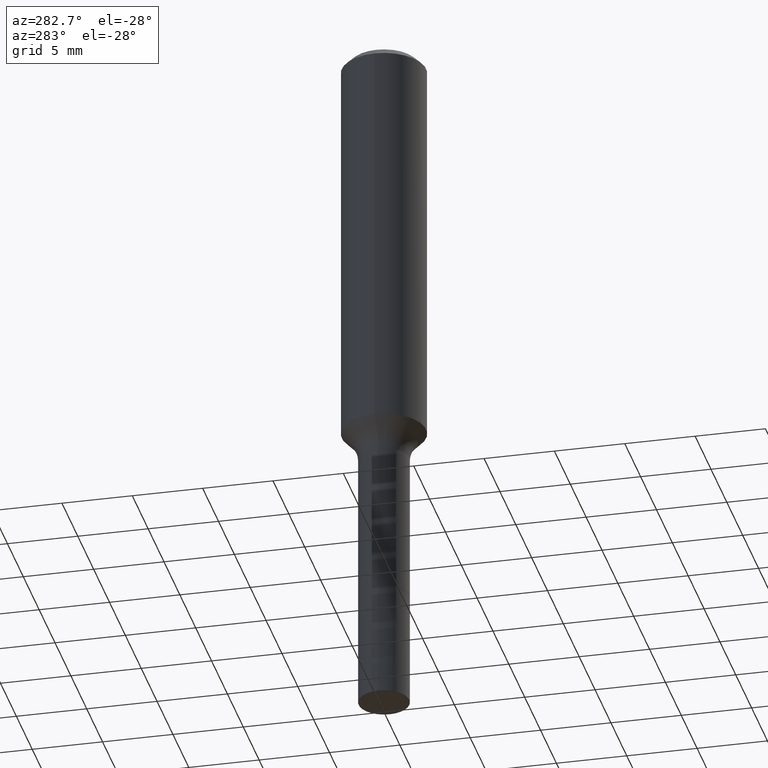
[diagram: clean part render]
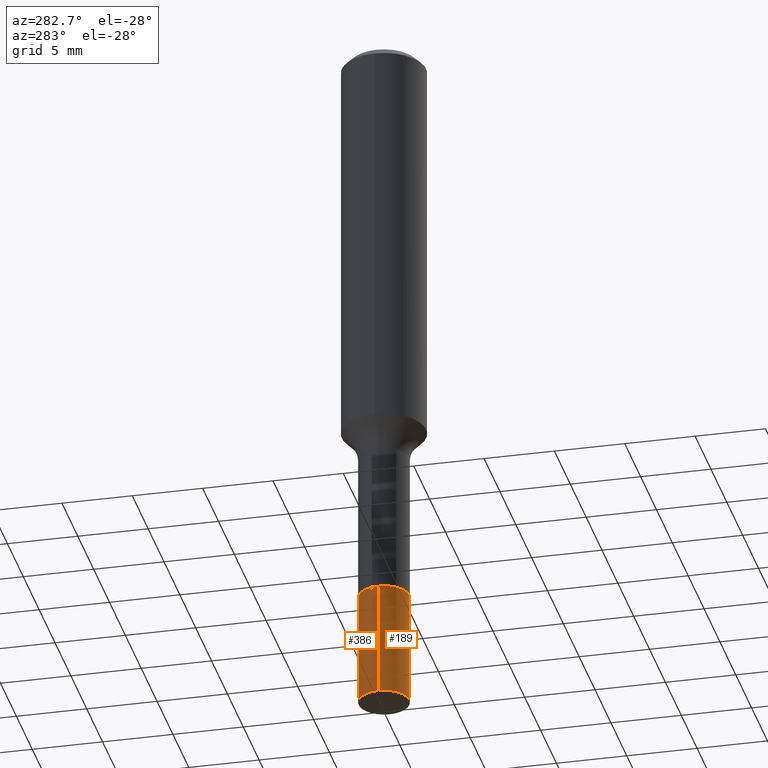
[diagram: same view with one multi-face feature highlighted, each face labeled with its STEP entity id]
A machine part, auxiliary view. The highlighted faces form ONE feature: a constant-radius fillet chain: 2 tangent blend faces with common blend radius 1.7996 mm. The faces share edges in the B-rep.
Their STEP definitions:
[1] entity #189 (Cylinder):
#23 = AXIS2_PLACEMENT_3D ( 'NONE', #500, #183, #293 ) ;
#28 = FACE_OUTER_BOUND ( 'NONE', #217, .T. ) ;
#49 = VERTEX_POINT ( 'NONE', #458 ) ;
#60 = DIRECTION ( 'NONE',  ( -2.445468806185136877E-29, 3.491481338843145188E-15, 1.000000000000000000 ) ) ;
#69 = DIRECTION ( 'NONE',  ( -2.445468806185136877E-29, 3.491481338843145188E-15, 1.000000000000000000 ) ) ;
#75 = DIRECTION ( 'NONE',  ( -2.445468806185136597E-29, 3.491481338843145583E-15, 1.000000000000000000 ) ) ;
#90 = CIRCLE ( 'NONE', #23, 0.07085000000000010734 ) ;
#93 = ORIENTED_EDGE ( 'NONE', *, *, #402, .T. ) ;
#95 = VERTEX_POINT ( 'NONE', #224 ) ;
#123 = VECTOR ( 'NONE', #60, 39.37007874015748143 ) ;
#134 = ORIENTED_EDGE ( 'NONE', *, *, #518, .F. ) ;
#140 = EDGE_CURVE ( 'NONE', #251, #49, #264, .T. ) ;
#151 = CARTESIAN_POINT ( 'NONE',  ( 4.024018920577642301E-29, -5.745232543066395437E-15, -1.645499999999999963 ) ) ;
#179 = VECTOR ( 'NONE', #69, 39.37007874015748143 ) ;
#183 = DIRECTION ( 'NONE',  ( -2.445468806185136597E-29, 3.491481338843145583E-15, 1.000000000000000000 ) ) ;
#189 = ADVANCED_FACE ( 'NONE', ( #28 ), #377, .T. ) ;
#216 = EDGE_CURVE ( 'NONE', #406, #49, #481, .T. ) ;
#217 = EDGE_LOOP ( 'NONE', ( #134, #93, #281, #243 ) ) ;
#224 = CARTESIAN_POINT ( 'NONE',  ( -0.07085000000000010734, -5.805687251003532419E-15, -1.968500000000000139 ) ) ;
#243 = ORIENTED_EDGE ( 'NONE', *, *, #216, .F. ) ;
#251 = VERTEX_POINT ( 'NONE', #288 ) ;
#264 = LINE ( 'NONE', #421, #123 ) ;
#281 = ORIENTED_EDGE ( 'NONE', *, *, #140, .T. ) ;
#288 = CARTESIAN_POINT ( 'NONE',  ( 0.07085000000000010734, -7.367723921226805540E-15, -1.968500000000000139 ) ) ;
#293 = DIRECTION ( 'NONE',  ( 1.000000000000000000, -6.982962677686266711E-15, 0.000000000000000000 ) ) ;
#301 = CARTESIAN_POINT ( 'NONE',  ( -0.07084999999999999631, -5.805687251003533208E-15, -1.645499999999999963 ) ) ;
#314 = DIRECTION ( 'NONE',  ( 1.000000000000000000, -6.982962677686263555E-15, 0.000000000000000000 ) ) ;
#377 = CYLINDRICAL_SURFACE ( 'NONE', #467, 0.07085000000000005183 ) ;
#385 = LINE ( 'NONE', #473, #179 ) ;
#387 = CARTESIAN_POINT ( 'NONE',  ( 4.024018920577642301E-29, -5.745232543066395437E-15, -1.645499999999999963 ) ) ;
#402 = EDGE_CURVE ( 'NONE', #95, #251, #90, .T. ) ;
#406 = VERTEX_POINT ( 'NONE', #301 ) ;
#421 = CARTESIAN_POINT ( 'NONE',  ( 0.07085000000000005183, -6.239975448780468481E-15, -1.645499999999999963 ) ) ;
#429 = DIRECTION ( 'NONE',  ( 1.000000000000000000, -6.982962677686272233E-15, 0.000000000000000000 ) ) ;
#458 = CARTESIAN_POINT ( 'NONE',  ( 0.07084999999999999631, -6.239975448780467692E-15, -1.645499999999999963 ) ) ;
#467 = AXIS2_PLACEMENT_3D ( 'NONE', #387, #503, #429 ) ;
#473 = CARTESIAN_POINT ( 'NONE',  ( -0.07085000000000005183, -5.241813014780364678E-15, -1.645499999999999963 ) ) ;
#481 = CIRCLE ( 'NONE', #492, 0.07084999999999999631 ) ;
#492 = AXIS2_PLACEMENT_3D ( 'NONE', #151, #75, #314 ) ;
#500 = CARTESIAN_POINT ( 'NONE',  ( 4.813905344975441835E-29, -6.872981015512731707E-15, -1.968500000000000139 ) ) ;
#503 = DIRECTION ( 'NONE',  ( -2.445468806185136597E-29, 3.491481338843145583E-15, 1.000000000000000000 ) ) ;
#518 = EDGE_CURVE ( 'NONE', #95, #406, #385, .T. ) ;
[2] entity #386 (Cylinder):
#37 = CIRCLE ( 'NONE', #344, 0.07084999999999999631 ) ;
#38 = EDGE_CURVE ( 'NONE', #251, #95, #65, .T. ) ;
#49 = VERTEX_POINT ( 'NONE', #458 ) ;
#60 = DIRECTION ( 'NONE',  ( -2.445468806185136877E-29, 3.491481338843145188E-15, 1.000000000000000000 ) ) ;
#63 = DIRECTION ( 'NONE',  ( 1.000000000000000000, -6.982962677686263555E-15, 0.000000000000000000 ) ) ;
#65 = CIRCLE ( 'NONE', #94, 0.07085000000000010734 ) ;
#69 = DIRECTION ( 'NONE',  ( -2.445468806185136877E-29, 3.491481338843145188E-15, 1.000000000000000000 ) ) ;
#94 = AXIS2_PLACEMENT_3D ( 'NONE', #118, #454, #432 ) ;
#95 = VERTEX_POINT ( 'NONE', #224 ) ;
#107 = CARTESIAN_POINT ( 'NONE',  ( 4.024018920577642301E-29, -5.745232543066395437E-15, -1.645499999999999963 ) ) ;
#118 = CARTESIAN_POINT ( 'NONE',  ( 4.813905344975441835E-29, -6.872981015512731707E-15, -1.968500000000000139 ) ) ;
#123 = VECTOR ( 'NONE', #60, 39.37007874015748143 ) ;
#125 = AXIS2_PLACEMENT_3D ( 'NONE', #258, #505, #455 ) ;
#139 = ORIENTED_EDGE ( 'NONE', *, *, #38, .T. ) ;
#140 = EDGE_CURVE ( 'NONE', #251, #49, #264, .T. ) ;
#158 = EDGE_CURVE ( 'NONE', #49, #406, #37, .T. ) ;
#178 = EDGE_LOOP ( 'NONE', ( #139, #242, #438, #207 ) ) ;
#179 = VECTOR ( 'NONE', #69, 39.37007874015748143 ) ;
#207 = ORIENTED_EDGE ( 'NONE', *, *, #140, .F. ) ;
#224 = CARTESIAN_POINT ( 'NONE',  ( -0.07085000000000010734, -5.805687251003532419E-15, -1.968500000000000139 ) ) ;
#242 = ORIENTED_EDGE ( 'NONE', *, *, #518, .T. ) ;
#251 = VERTEX_POINT ( 'NONE', #288 ) ;
#258 = CARTESIAN_POINT ( 'NONE',  ( 4.024018920577642301E-29, -5.745232543066395437E-15, -1.645499999999999963 ) ) ;
#264 = LINE ( 'NONE', #421, #123 ) ;
#288 = CARTESIAN_POINT ( 'NONE',  ( 0.07085000000000010734, -7.367723921226805540E-15, -1.968500000000000139 ) ) ;
#295 = FACE_OUTER_BOUND ( 'NONE', #178, .T. ) ;
#301 = CARTESIAN_POINT ( 'NONE',  ( -0.07084999999999999631, -5.805687251003533208E-15, -1.645499999999999963 ) ) ;
#343 = DIRECTION ( 'NONE',  ( -2.445468806185136597E-29, 3.491481338843145583E-15, 1.000000000000000000 ) ) ;
#344 = AXIS2_PLACEMENT_3D ( 'NONE', #107, #343, #63 ) ;
#383 = CYLINDRICAL_SURFACE ( 'NONE', #125, 0.07085000000000005183 ) ;
#385 = LINE ( 'NONE', #473, #179 ) ;
#386 = ADVANCED_FACE ( 'NONE', ( #295 ), #383, .T. ) ;
#406 = VERTEX_POINT ( 'NONE', #301 ) ;
#421 = CARTESIAN_POINT ( 'NONE',  ( 0.07085000000000005183, -6.239975448780468481E-15, -1.645499999999999963 ) ) ;
#432 = DIRECTION ( 'NONE',  ( 1.000000000000000000, -6.982962677686266711E-15, 0.000000000000000000 ) ) ;
#438 = ORIENTED_EDGE ( 'NONE', *, *, #158, .F. ) ;
#454 = DIRECTION ( 'NONE',  ( -2.445468806185136597E-29, 3.491481338843145583E-15, 1.000000000000000000 ) ) ;
#455 = DIRECTION ( 'NONE',  ( 1.000000000000000000, -6.982962677686272233E-15, 0.000000000000000000 ) ) ;
#458 = CARTESIAN_POINT ( 'NONE',  ( 0.07084999999999999631, -6.239975448780467692E-15, -1.645499999999999963 ) ) ;
#473 = CARTESIAN_POINT ( 'NONE',  ( -0.07085000000000005183, -5.241813014780364678E-15, -1.645499999999999963 ) ) ;
#505 = DIRECTION ( 'NONE',  ( -2.445468806185136597E-29, 3.491481338843145583E-15, 1.000000000000000000 ) ) ;
#518 = EDGE_CURVE ( 'NONE', #95, #406, #385, .T. ) ;